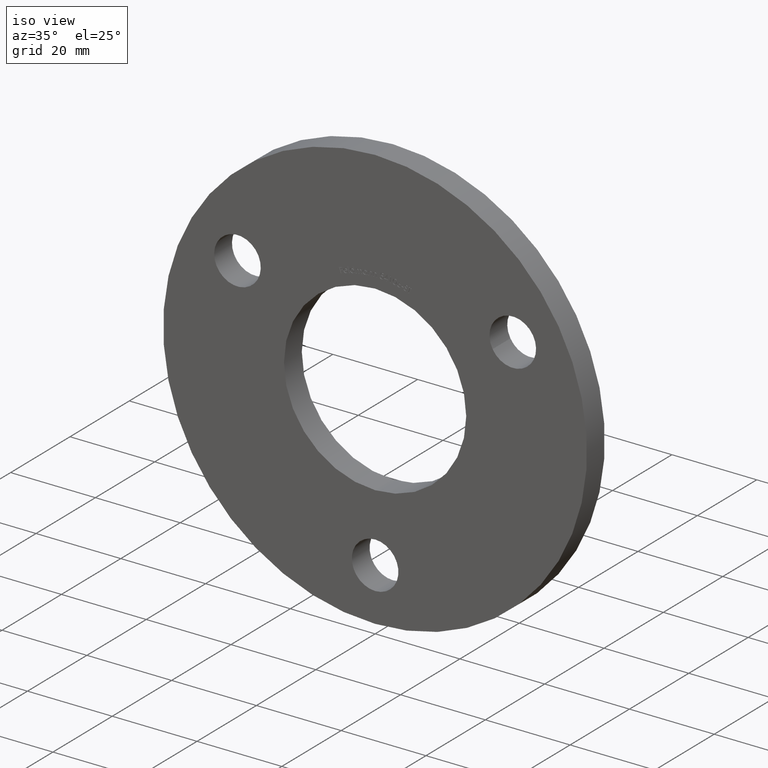
[diagram: clean part render]
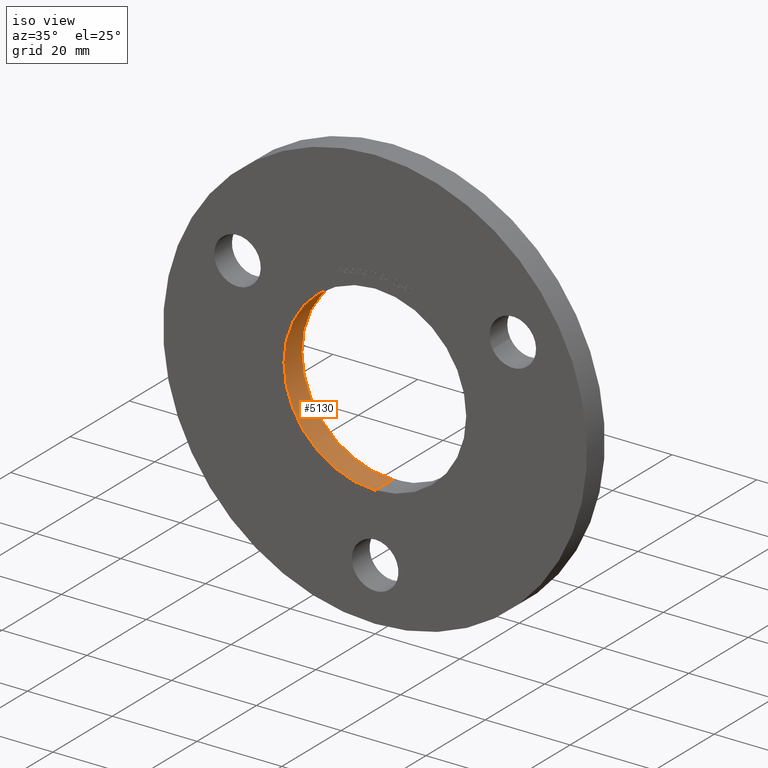
[diagram: same view with one face highlighted and labeled with its STEP entity id]
A machine part, iso view. The second image highlights one B-rep face of the part: STEP entity #5130.
In plain terms, the highlighted cylindrical surface (partial cylindrical patch) has radius 21.5 mm, axis along (-0, 1, -0).
Its self-contained STEP definition (entity closure, byte-faithful):
#381 = DIRECTION ( 'NONE',  ( 0.0000000000000000000, 0.0000000000000000000, 1.000000000000000000 ) ) ;
#415 = DIRECTION ( 'NONE',  ( -0.0000000000000000000, 1.000000000000000000, -0.0000000000000000000 ) ) ;
#473 = CIRCLE ( 'NONE', #4303, 21.50000000000000000 ) ;
#627 = VECTOR ( 'NONE', #4257, 1000.000000000000000 ) ;
#669 = CARTESIAN_POINT ( 'NONE',  ( 2.632990618166809200E-015, 0.0000000000000000000, -21.50000000000000000 ) ) ;
#780 = VERTEX_POINT ( 'NONE', #1191 ) ;
#1191 = CARTESIAN_POINT ( 'NONE',  ( 0.0000000000000000000, 6.000000000000000000, 21.50000000000000000 ) ) ;
#1725 = LINE ( 'NONE', #669, #627 ) ;
#2140 = DIRECTION ( 'NONE',  ( 0.0000000000000000000, 1.000000000000000000, 0.0000000000000000000 ) ) ;
#2975 = CIRCLE ( 'NONE', #5032, 21.50000000000000000 ) ;
#3329 = AXIS2_PLACEMENT_3D ( 'NONE', #5785, #10262, #3807 ) ;
#3518 = VERTEX_POINT ( 'NONE', #9123 ) ;
#3807 = DIRECTION ( 'NONE',  ( 0.0000000000000000000, 0.0000000000000000000, 1.000000000000000000 ) ) ;
#4256 = EDGE_CURVE ( 'NONE', #3518, #780, #2975, .T. ) ;
#4257 = DIRECTION ( 'NONE',  ( -0.0000000000000000000, 1.000000000000000000, -0.0000000000000000000 ) ) ;
#4281 = CARTESIAN_POINT ( 'NONE',  ( 0.0000000000000000000, 6.000000000000000000, 0.0000000000000000000 ) ) ;
#4303 = AXIS2_PLACEMENT_3D ( 'NONE', #10945, #2140, #381 ) ;
#4599 = ORIENTED_EDGE ( 'NONE', *, *, #8163, .F. ) ;
#5020 = VECTOR ( 'NONE', #415, 1000.000000000000000 ) ;
#5032 = AXIS2_PLACEMENT_3D ( 'NONE', #4281, #7916, #9529 ) ;
#5130 = ADVANCED_FACE ( 'NONE', ( #10189 ), #9066, .F. ) ;
#5290 = LINE ( 'NONE', #5692, #5020 ) ;
#5595 = VERTEX_POINT ( 'NONE', #8296 ) ;
#5692 = CARTESIAN_POINT ( 'NONE',  ( 0.0000000000000000000, 0.0000000000000000000, 21.50000000000000000 ) ) ;
#5785 = CARTESIAN_POINT ( 'NONE',  ( 0.0000000000000000000, 0.0000000000000000000, 0.0000000000000000000 ) ) ;
#6470 = CARTESIAN_POINT ( 'NONE',  ( 0.0000000000000000000, 0.0000000000000000000, 21.50000000000000000 ) ) ;
#6765 = EDGE_CURVE ( 'NONE', #5595, #3518, #1725, .T. ) ;
#7443 = VERTEX_POINT ( 'NONE', #6470 ) ;
#7474 = ORIENTED_EDGE ( 'NONE', *, *, #4256, .T. ) ;
#7916 = DIRECTION ( 'NONE',  ( 0.0000000000000000000, 1.000000000000000000, 0.0000000000000000000 ) ) ;
#8163 = EDGE_CURVE ( 'NONE', #5595, #7443, #473, .T. ) ;
#8227 = ORIENTED_EDGE ( 'NONE', *, *, #6765, .T. ) ;
#8296 = CARTESIAN_POINT ( 'NONE',  ( 2.632990618166809200E-015, 0.0000000000000000000, -21.50000000000000000 ) ) ;
#8856 = ORIENTED_EDGE ( 'NONE', *, *, #9067, .F. ) ;
#9066 = CYLINDRICAL_SURFACE ( 'NONE', #3329, 21.50000000000000000 ) ;
#9067 = EDGE_CURVE ( 'NONE', #7443, #780, #5290, .T. ) ;
#9123 = CARTESIAN_POINT ( 'NONE',  ( 2.632990618166809200E-015, 6.000000000000000000, -21.50000000000000000 ) ) ;
#9529 = DIRECTION ( 'NONE',  ( 0.0000000000000000000, 0.0000000000000000000, 1.000000000000000000 ) ) ;
#10068 = EDGE_LOOP ( 'NONE', ( #4599, #8227, #7474, #8856 ) ) ;
#10189 = FACE_OUTER_BOUND ( 'NONE', #10068, .T. ) ;
#10262 = DIRECTION ( 'NONE',  ( -0.0000000000000000000, 1.000000000000000000, -0.0000000000000000000 ) ) ;
#10945 = CARTESIAN_POINT ( 'NONE',  ( 0.0000000000000000000, 0.0000000000000000000, 0.0000000000000000000 ) ) ;